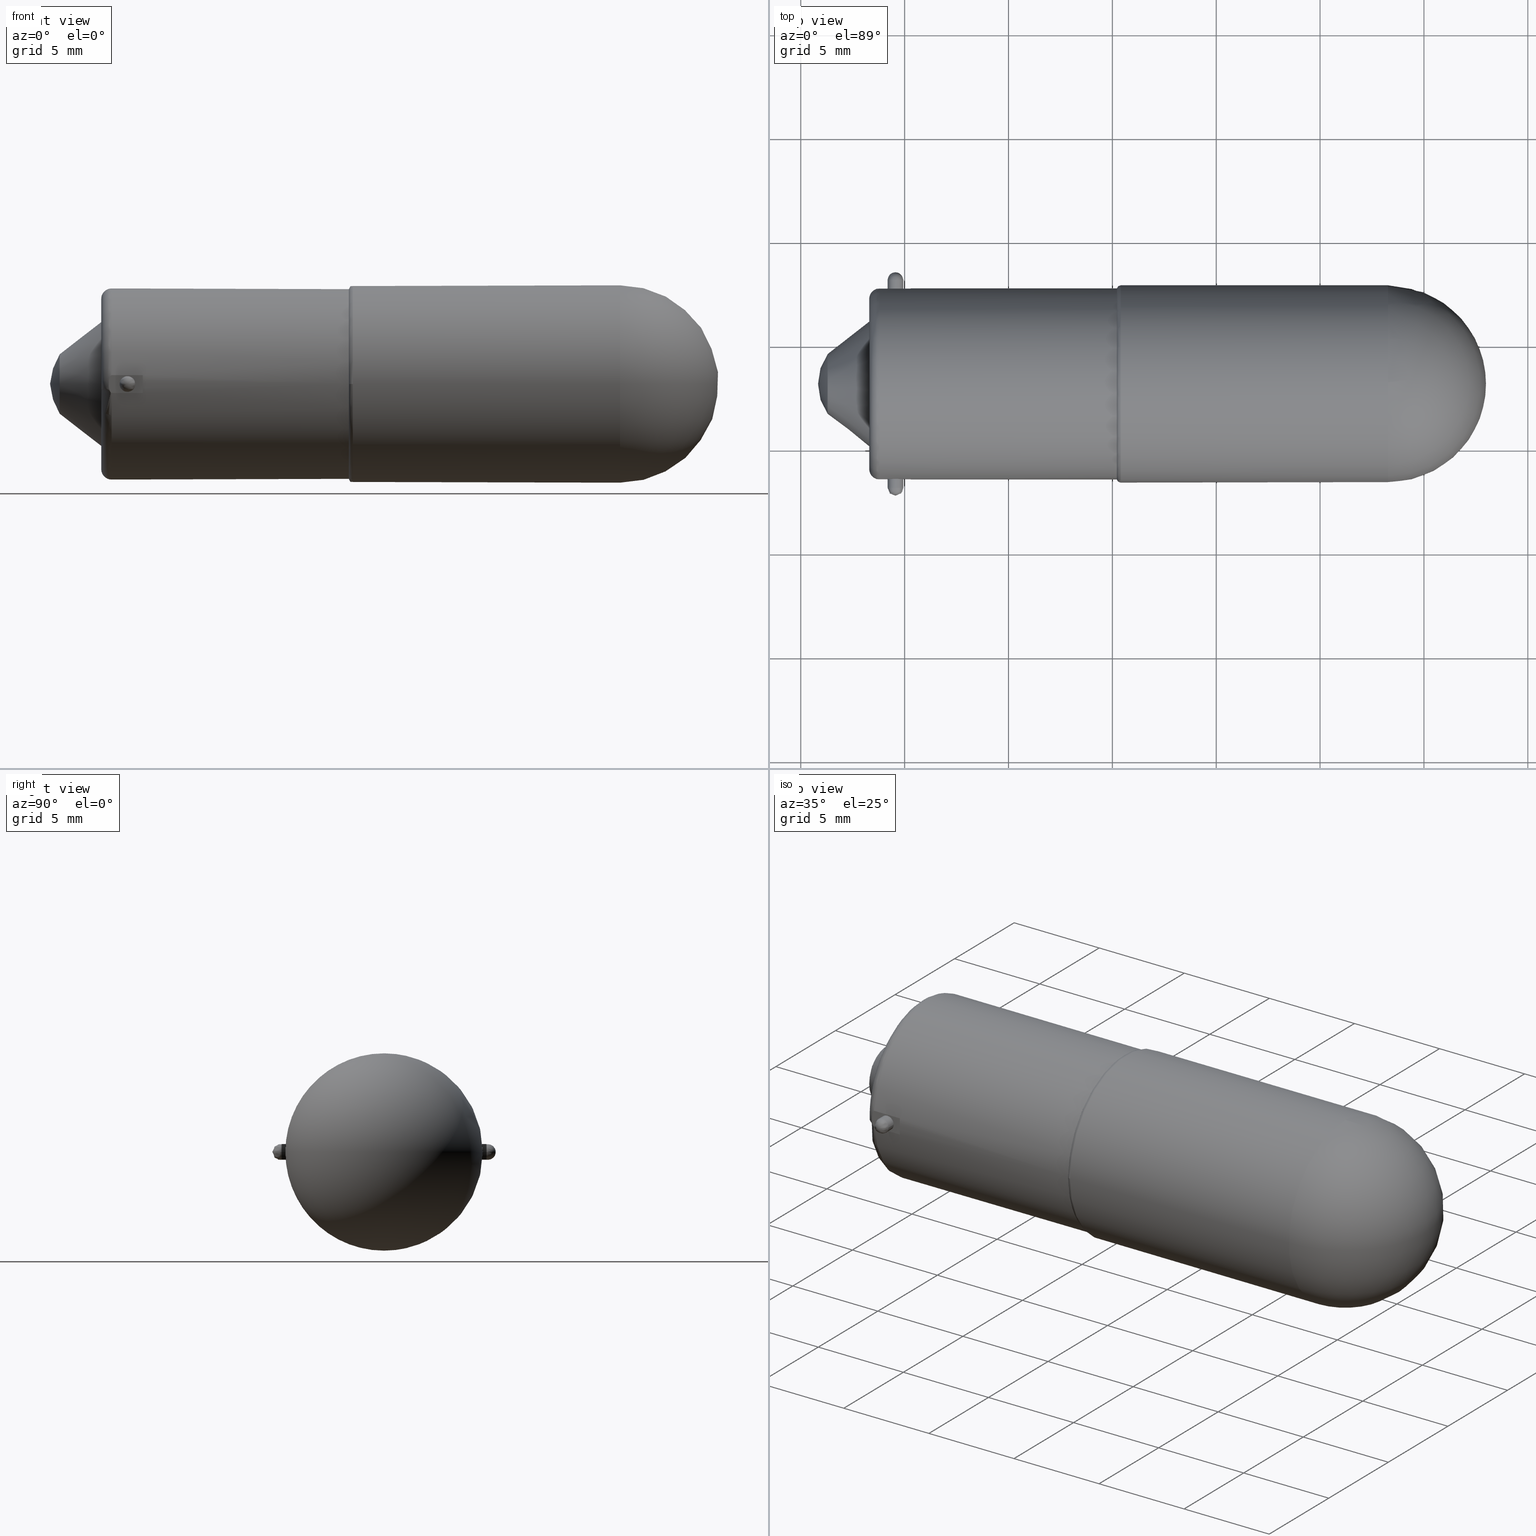
[diagram: canonical four-view strip — front | top / right | iso, engineering-drawing reading convention]
A machine part, canonical four-view strip (front | top / right | iso — engineering-drawing reading convention). The complete STEP part file that produces these views, byte-faithful:
ISO-10303-21;
HEADER;
/****************************************************************
 * Generated by software with PDE/Lib inside                    *
 * PDElib Version v51a, created Thu 12/14/2006                  *
 * International Technegroup Inc. (www.iti-oh.com)              *
 ****************************************************************/
FILE_DESCRIPTION((''),'2;1');
FILE_NAME('M:\\cad\\1PB\\BA9Syyy\\BA9Sxxx.stp','2007-11-15T14:35:29',('Philipp'),(''),'Autodesk Inventor 2008','Autodesk Inventor 2008','');
FILE_SCHEMA(('AUTOMOTIVE_DESIGN { 1 0 10303 214 1 1 1 1 }'));
ENDSEC;
DATA;
#5=APPLICATION_CONTEXT('automotive design');
#6=APPLICATION_PROTOCOL_DEFINITION('International Standard','automotive_design',2001,#5);
#7=PRODUCT_CONTEXT('',#5,'mechanical');
#8=PRODUCT('BA9Sxxx','BA9Sxxx',$,(#7));
#9=PRODUCT_RELATED_PRODUCT_CATEGORY('part',$,(#8));
#10=PRODUCT_DEFINITION_FORMATION('',$,#8);
#11=PRODUCT_DEFINITION_CONTEXT('part definition',#5,'design');
#12=PRODUCT_DEFINITION('',$,#10,#11);
#18=(NAMED_UNIT(*)PLANE_ANGLE_UNIT()SI_UNIT($,.RADIAN.));
#19=DIMENSIONAL_EXPONENTS(0.0,0.0,0.0,0.0,0.0,0.0,0.0);
#20=PLANE_ANGLE_MEASURE_WITH_UNIT(PLANE_ANGLE_MEASURE(0.017453292500000),#18);
#24=(CONVERSION_BASED_UNIT('DEGREE',#20)NAMED_UNIT(#19)PLANE_ANGLE_UNIT());
#28=(NAMED_UNIT(*)SI_UNIT($,.STERADIAN.)SOLID_ANGLE_UNIT());
#32=(LENGTH_UNIT()NAMED_UNIT(*)SI_UNIT(.MILLI.,.METRE.));
#34=UNCERTAINTY_MEASURE_WITH_UNIT(LENGTH_MEASURE(0.010000000000000),#32,'DISTANCE_ACCURACY_VALUE','');
#36=(GEOMETRIC_REPRESENTATION_CONTEXT(3)GLOBAL_UNCERTAINTY_ASSIGNED_CONTEXT((#34))GLOBAL_UNIT_ASSIGNED_CONTEXT((#24,#28,#32))REPRESENTATION_CONTEXT('None','None'));
#37=AXIS2_PLACEMENT_3D('',#38,#39,#40);
#38=CARTESIAN_POINT('',(0.0,0.0,0.0));
#39=DIRECTION('',(0.0,0.0,1.0));
#40=DIRECTION('',(1.0,0.0,0.0));
#41=SHAPE_REPRESENTATION('',(#37),#36);
#42=PRODUCT_DEFINITION_SHAPE('','',#12);
#43=SHAPE_DEFINITION_REPRESENTATION(#42,#41);
#49=(NAMED_UNIT(*)PLANE_ANGLE_UNIT()SI_UNIT($,.RADIAN.));
#50=DIMENSIONAL_EXPONENTS(0.0,0.0,0.0,0.0,0.0,0.0,0.0);
#51=PLANE_ANGLE_MEASURE_WITH_UNIT(PLANE_ANGLE_MEASURE(0.017453292500000),#49);
#55=(CONVERSION_BASED_UNIT('DEGREE',#51)NAMED_UNIT(#50)PLANE_ANGLE_UNIT());
#59=(NAMED_UNIT(*)SI_UNIT($,.STERADIAN.)SOLID_ANGLE_UNIT());
#63=(LENGTH_UNIT()NAMED_UNIT(*)SI_UNIT(.MILLI.,.METRE.));
#65=UNCERTAINTY_MEASURE_WITH_UNIT(LENGTH_MEASURE(0.000001000000000),#63,'DISTANCE_ACCURACY_VALUE','');
#67=(GEOMETRIC_REPRESENTATION_CONTEXT(3)GLOBAL_UNCERTAINTY_ASSIGNED_CONTEXT((#65))GLOBAL_UNIT_ASSIGNED_CONTEXT((#55,#59,#63))REPRESENTATION_CONTEXT('','3D'));
#68=CARTESIAN_POINT('',(-10.444225852481848,-1.858710488941706,-0.375014294287416));
#69=CARTESIAN_POINT('',(-10.819225852481848,-1.858710488941706,-0.375014294287416));
#70=CARTESIAN_POINT('',(-10.819225852481848,-1.858710488941706,-0.000014294287416));
#71=CARTESIAN_POINT('',(-10.819225852481848,-1.858710488941706,0.374985705712584));
#72=CARTESIAN_POINT('',(-10.444225852481848,-1.858710488941706,0.374985705712584));
#73=CARTESIAN_POINT('',(-10.444225852481848,-1.858710488941706,-0.375014294287416));
#74=CARTESIAN_POINT('',(-10.819225852481848,-1.483710488941706,-0.375014294287416));
#75=CARTESIAN_POINT('',(-10.819225852481848,-1.483710488941706,-0.000014294287416));
#76=CARTESIAN_POINT('',(-10.819225852481848,-1.483710488941706,0.374985705712584));
#77=CARTESIAN_POINT('',(-10.444225852481848,-1.858710488941706,0.374985705712584));
#78=CARTESIAN_POINT('',(-10.444225852481848,-1.858710488941706,-0.375014294287416));
#79=CARTESIAN_POINT('',(-10.444225852481848,-1.483710488941706,-0.375014294287416));
#80=CARTESIAN_POINT('',(-10.444225852481848,-1.483710488941706,-0.000014294287416));
#81=CARTESIAN_POINT('',(-10.444225852481848,-1.483710488941706,0.374985705712584));
#82=CARTESIAN_POINT('',(-10.444225852481848,-1.858710488941706,0.374985705712584));
#83=CARTESIAN_POINT('',(-10.444225852481848,-1.858710488941706,-0.375014294287416));
#84=CARTESIAN_POINT('',(-10.069225852481848,-1.483710488941706,-0.375014294287415));
#85=CARTESIAN_POINT('',(-10.069225852481848,-1.483710488941706,-0.000014294287416));
#86=CARTESIAN_POINT('',(-10.069225852481848,-1.483710488941706,0.374985705712585));
#87=CARTESIAN_POINT('',(-10.444225852481848,-1.858710488941706,0.374985705712584));
#88=CARTESIAN_POINT('',(-10.444225852481848,-1.858710488941706,-0.375014294287416));
#89=CARTESIAN_POINT('',(-10.069225852481848,-1.858710488941706,-0.375014294287415));
#90=CARTESIAN_POINT('',(-10.069225852481848,-1.858710488941706,-0.000014294287416));
#91=CARTESIAN_POINT('',(-10.069225852481848,-1.858710488941706,0.374985705712584));
#92=CARTESIAN_POINT('',(-10.444225852481848,-1.858710488941706,0.374985705712584));
#93=CARTESIAN_POINT('',(-10.444225852481848,-1.858710488941706,-0.375014294287416));
#94=CARTESIAN_POINT('',(-10.069225852481848,-2.233710488941706,-0.375014294287415));
#95=CARTESIAN_POINT('',(-10.069225852481848,-2.233710488941706,-0.000014294287416));
#96=CARTESIAN_POINT('',(-10.069225852481848,-2.233710488941706,0.374985705712585));
#97=CARTESIAN_POINT('',(-10.444225852481848,-1.858710488941706,0.374985705712584));
#98=CARTESIAN_POINT('',(-10.444225852481848,-1.858710488941706,-0.375014294287416));
#99=CARTESIAN_POINT('',(-10.444225852481848,-2.233710488941706,-0.375014294287416));
#100=CARTESIAN_POINT('',(-10.444225852481848,-2.233710488941706,-0.000014294287416));
#101=CARTESIAN_POINT('',(-10.444225852481848,-2.233710488941706,0.374985705712584));
#102=CARTESIAN_POINT('',(-10.444225852481848,-1.858710488941706,0.374985705712584));
#103=CARTESIAN_POINT('',(-10.444225852481848,-1.858710488941706,-0.375014294287416));
#104=CARTESIAN_POINT('',(-10.819225852481848,-2.233710488941706,-0.375014294287416));
#105=CARTESIAN_POINT('',(-10.819225852481848,-2.233710488941706,-0.000014294287416));
#106=CARTESIAN_POINT('',(-10.819225852481848,-2.233710488941706,0.374985705712584));
#107=CARTESIAN_POINT('',(-10.444225852481848,-1.858710488941706,0.374985705712584));
#108=CARTESIAN_POINT('',(-10.444225852481848,-1.858710488941706,-0.375014294287416));
#109=CARTESIAN_POINT('',(-10.819225852481848,-1.858710488941706,-0.375014294287416));
#110=CARTESIAN_POINT('',(-10.819225852481848,-1.858710488941706,-0.000014294287416));
#111=CARTESIAN_POINT('',(-10.819225852481848,-1.858710488941706,0.374985705712584));
#112=CARTESIAN_POINT('',(-10.444225852481848,-1.858710488941706,0.374985705712584));
#120=(BOUNDED_SURFACE()B_SPLINE_SURFACE(2,2,((#68,#73,#78,#83,#88,#93,#98,#103,#108),(#69,#74,#79,#84,#89,#94,#99,#104,#109),(#70,#75,#80,#85,#90,#95,#100,#105,#110),(#71,#76,#81,#86,#91,#96,#101,#106,#111),(#72,#77,#82,#87,#92,#97,#102,#107,#112)),.UNSPECIFIED.,.F.,.T.,.U.)B_SPLINE_SURFACE_WITH_KNOTS((3,2,3),(3,2,2,2,3),(-1.570796326794897,0.0,1.570796326794897),(0.0,1.570796326794897,3.141592653589793,4.712388980384690,6.283185307179586),.UNSPECIFIED.)GEOMETRIC_REPRESENTATION_ITEM()RATIONAL_B_SPLINE_SURFACE(((1.0,0.707106781186548,1.0,0.707106781186548,1.0,0.707106781186548,1.0,0.707106781186548,1.0),(0.707106781186550,0.500000000000002,0.707106781186550,0.500000000000002,0.707106781186550,0.500000000000002,0.707106781186550,0.500000000000002,0.707106781186550),(1.0,0.707106781186548,1.0,0.707106781186548,1.0,0.707106781186548,1.0,0.707106781186548,1.0),(0.707106781186551,0.500000000000002,0.707106781186551,0.500000000000002,0.707106781186551,0.500000000000002,0.707106781186551,0.500000000000002,0.707106781186551),(1.0,0.707106781186548,1.0,0.707106781186548,1.0,0.707106781186548,1.0,0.707106781186548,1.0)))REPRESENTATION_ITEM('')SURFACE());
#121=CARTESIAN_POINT('',(-10.069225852481846,-1.858710488941706,-0.000014294287416));
#122=VERTEX_POINT('',#121);
#123=CARTESIAN_POINT('',(-10.444225852481848,-1.858710488941706,-0.375014294287416));
#124=VERTEX_POINT('',#123);
#125=CARTESIAN_POINT('',(-10.444225852481848,-1.858710488941706,-0.000014294287416));
#126=DIRECTION('',(0.0,1.0,0.0));
#127=DIRECTION('',(-1.0,0.0,0.0));
#128=AXIS2_PLACEMENT_3D('',#125,#126,#127);
#129=CIRCLE('',#128,0.375000000000001);
#130=EDGE_CURVE('',#122,#124,#129,.T.);
#131=ORIENTED_EDGE('',*,*,#130,.F.);
#132=CARTESIAN_POINT('',(-10.444225852481848,-1.858710488941706,0.374985705712585));
#133=VERTEX_POINT('',#132);
#134=CARTESIAN_POINT('',(-10.444225852481848,-1.858710488941706,-0.000014294287416));
#135=DIRECTION('',(0.0,1.0,0.0));
#136=DIRECTION('',(-1.0,0.0,0.0));
#137=AXIS2_PLACEMENT_3D('',#134,#135,#136);
#138=CIRCLE('',#137,0.375000000000001);
#139=EDGE_CURVE('',#133,#122,#138,.T.);
#140=ORIENTED_EDGE('',*,*,#139,.F.);
#141=CARTESIAN_POINT('',(-10.444225852481848,-1.858710488941706,-0.000014294287416));
#142=DIRECTION('',(0.0,1.0,0.0));
#143=DIRECTION('',(-1.0,0.0,0.0));
#144=AXIS2_PLACEMENT_3D('',#141,#142,#143);
#145=CIRCLE('',#144,0.375000000000001);
#146=EDGE_CURVE('',#124,#133,#145,.T.);
#147=ORIENTED_EDGE('',*,*,#146,.F.);
#148=EDGE_LOOP('',(#131,#140,#147));
#149=FACE_OUTER_BOUND('',#148,.T.);
#150=ADVANCED_FACE('',(#149),#120,.T.);
#151=CARTESIAN_POINT('',(-10.069225852481848,-1.433710488941706,-0.000014294287416));
#152=CARTESIAN_POINT('',(-10.069225852481848,-1.858710488941706,-0.000014294287416));
#153=CARTESIAN_POINT('',(-10.069225852481848,-1.433710488941706,-0.375014294287416));
#154=CARTESIAN_POINT('',(-10.069225852481848,-1.858710488941706,-0.375014294287416));
#155=CARTESIAN_POINT('',(-10.444225852481848,-1.433710488941706,-0.375014294287416));
#156=CARTESIAN_POINT('',(-10.444225852481848,-1.858710488941706,-0.375014294287416));
#157=CARTESIAN_POINT('',(-10.819225852481848,-1.433710488941706,-0.375014294287415));
#158=CARTESIAN_POINT('',(-10.819225852481848,-1.858710488941706,-0.375014294287415));
#159=CARTESIAN_POINT('',(-10.819225852481848,-1.433710488941706,-0.000014294287415));
#160=CARTESIAN_POINT('',(-10.819225852481848,-1.858710488941706,-0.000014294287415));
#161=CARTESIAN_POINT('',(-10.819225852481848,-1.433710488941706,0.374985705712584));
#162=CARTESIAN_POINT('',(-10.819225852481848,-1.858710488941706,0.374985705712584));
#163=CARTESIAN_POINT('',(-10.444225852481848,-1.433710488941706,0.374985705712584));
#164=CARTESIAN_POINT('',(-10.444225852481848,-1.858710488941706,0.374985705712584));
#165=CARTESIAN_POINT('',(-10.069225852481848,-1.433710488941706,0.374985705712584));
#166=CARTESIAN_POINT('',(-10.069225852481848,-1.858710488941706,0.374985705712584));
#167=CARTESIAN_POINT('',(-10.069225852481848,-1.433710488941706,-0.000014294287416));
#168=CARTESIAN_POINT('',(-10.069225852481848,-1.858710488941706,-0.000014294287416));
#176=(BOUNDED_SURFACE()B_SPLINE_SURFACE(1,2,((#151,#153,#155,#157,#159,#161,#163,#165,#167),(#152,#154,#156,#158,#160,#162,#164,#166,#168)),.UNSPECIFIED.,.F.,.T.,.U.)B_SPLINE_SURFACE_WITH_KNOTS((2,2),(3,2,2,2,3),(1.776357E-015,1.133333333333336),(0.0,0.589048622548086,1.178097245096173,1.767145867644259,2.356194490192345),.UNSPECIFIED.)GEOMETRIC_REPRESENTATION_ITEM()RATIONAL_B_SPLINE_SURFACE(((1.0,0.707106781186548,1.0,0.707106781186548,1.0,0.707106781186548,1.0,0.707106781186548,1.0),(1.0,0.707106781186548,1.0,0.707106781186548,1.0,0.707106781186548,1.0,0.707106781186548,1.0)))REPRESENTATION_ITEM('')SURFACE());
#177=CARTESIAN_POINT('',(-10.069225852481846,-1.433710488941705,-0.000014294287416));
#178=VERTEX_POINT('',#177);
#179=CARTESIAN_POINT('',(-10.444225852481848,-1.433710488941706,-0.000014294287416));
#180=DIRECTION('',(0.0,1.0,0.0));
#181=DIRECTION('',(-1.0,0.0,0.0));
#182=AXIS2_PLACEMENT_3D('',#179,#180,#181);
#183=CIRCLE('',#182,0.375000000000000);
#184=EDGE_CURVE('',#178,#178,#183,.T.);
#185=ORIENTED_EDGE('',*,*,#184,.F.);
#186=EDGE_LOOP('',(#185));
#187=FACE_OUTER_BOUND('',#186,.T.);
#188=ORIENTED_EDGE('',*,*,#130,.T.);
#189=ORIENTED_EDGE('',*,*,#146,.T.);
#190=ORIENTED_EDGE('',*,*,#139,.T.);
#191=EDGE_LOOP('',(#188,#189,#190));
#192=FACE_BOUND('',#191,.T.);
#193=ADVANCED_FACE('',(#187,#192),#176,.T.);
#194=CARTESIAN_POINT('',(-10.444225852481848,8.151289511058291,-0.000014294287416));
#195=DIRECTION('',(0.0,0.0,1.0));
#196=DIRECTION('',(1.0,0.0,0.0));
#197=AXIS2_PLACEMENT_3D('',#194,#195,#196);
#198=SPHERICAL_SURFACE('',#197,0.375000000000000);
#199=CARTESIAN_POINT('',(-10.069225852481846,8.151289511058291,-0.000014294287416));
#200=VERTEX_POINT('',#199);
#201=CARTESIAN_POINT('',(-10.444225852481848,8.151289511058291,-0.375014294287416));
#202=VERTEX_POINT('',#201);
#203=CARTESIAN_POINT('',(-10.444225852481848,8.151289511058291,-0.000014294287416));
#204=DIRECTION('',(0.0,1.0,0.0));
#205=DIRECTION('',(-1.0,0.0,0.0));
#206=AXIS2_PLACEMENT_3D('',#203,#204,#205);
#207=CIRCLE('',#206,0.375000000000001);
#208=EDGE_CURVE('',#200,#202,#207,.T.);
#209=ORIENTED_EDGE('',*,*,#208,.T.);
#210=CARTESIAN_POINT('',(-10.444225852481848,8.151289511058291,0.374985705712585));
#211=VERTEX_POINT('',#210);
#212=CARTESIAN_POINT('',(-10.444225852481848,8.151289511058291,-0.000014294287416));
#213=DIRECTION('',(0.0,1.0,0.0));
#214=DIRECTION('',(-1.0,0.0,0.0));
#215=AXIS2_PLACEMENT_3D('',#212,#213,#214);
#216=CIRCLE('',#215,0.375000000000001);
#217=EDGE_CURVE('',#202,#211,#216,.T.);
#218=ORIENTED_EDGE('',*,*,#217,.T.);
#219=CARTESIAN_POINT('',(-10.444225852481848,8.151289511058291,-0.000014294287416));
#220=DIRECTION('',(0.0,1.0,0.0));
#221=DIRECTION('',(-1.0,0.0,0.0));
#222=AXIS2_PLACEMENT_3D('',#219,#220,#221);
#223=CIRCLE('',#222,0.375000000000001);
#224=EDGE_CURVE('',#211,#200,#223,.T.);
#225=ORIENTED_EDGE('',*,*,#224,.T.);
#226=EDGE_LOOP('',(#209,#218,#225));
#227=FACE_OUTER_BOUND('',#226,.T.);
#228=ADVANCED_FACE('',(#227),#198,.T.);
#229=CARTESIAN_POINT('',(-10.444225852481848,7.726289511058290,-0.000014294287416));
#230=DIRECTION('',(0.0,1.0,0.0));
#231=DIRECTION('',(-1.0,0.0,0.0));
#232=AXIS2_PLACEMENT_3D('',#229,#230,#231);
#233=CYLINDRICAL_SURFACE('',#232,0.375000000000000);
#234=CARTESIAN_POINT('',(-10.069225852481846,7.726289511058290,-0.000014294287416));
#235=VERTEX_POINT('',#234);
#236=CARTESIAN_POINT('',(-10.444225852481848,7.726289511058290,-0.000014294287416));
#237=DIRECTION('',(0.0,-1.0,0.0));
#238=DIRECTION('',(-1.0,0.0,0.0));
#239=AXIS2_PLACEMENT_3D('',#236,#237,#238);
#240=CIRCLE('',#239,0.375000000000000);
#241=EDGE_CURVE('',#235,#235,#240,.T.);
#242=ORIENTED_EDGE('',*,*,#241,.F.);
#243=EDGE_LOOP('',(#242));
#244=FACE_OUTER_BOUND('',#243,.T.);
#245=ORIENTED_EDGE('',*,*,#208,.F.);
#246=ORIENTED_EDGE('',*,*,#224,.F.);
#247=ORIENTED_EDGE('',*,*,#217,.F.);
#248=EDGE_LOOP('',(#245,#246,#247));
#249=FACE_BOUND('',#248,.T.);
#250=ADVANCED_FACE('',(#244,#249),#233,.T.);
#251=CARTESIAN_POINT('',(-9.705609115138564,8.509589465154260,0.123121417769885));
#252=DIRECTION('',(1.0,0.0,0.0));
#253=DIRECTION('',(0.0,0.0,-1.0));
#254=AXIS2_PLACEMENT_3D('',#251,#252,#253);
#255=PLANE('',#254);
#256=CARTESIAN_POINT('',(-9.705609115138564,7.726289511058290,-0.428485705712584));
#257=VERTEX_POINT('',#256);
#258=CARTESIAN_POINT('',(-9.705609115138564,7.726289511058290,0.428485705712584));
#259=VERTEX_POINT('',#258);
#260=CARTESIAN_POINT('',(-9.705609115138564,3.146289511058293,0.0));
#261=DIRECTION('',(1.0,0.0,0.0));
#262=DIRECTION('',(0.0,1.0,0.0));
#263=AXIS2_PLACEMENT_3D('',#260,#261,#262);
#264=CIRCLE('',#263,4.599999999999999);
#265=EDGE_CURVE('',#257,#259,#264,.T.);
#266=ORIENTED_EDGE('',*,*,#265,.F.);
#267=CARTESIAN_POINT('',(-9.705609115138564,7.726289511058290,-0.428485705712584));
#268=DIRECTION('',(0.0,0.0,1.0));
#269=VECTOR('',#268,0.856971411425169);
#270=LINE('',#267,#269);
#271=EDGE_CURVE('',#257,#259,#270,.T.);
#272=ORIENTED_EDGE('',*,*,#271,.T.);
#273=EDGE_LOOP('',(#266,#272));
#274=FACE_OUTER_BOUND('',#273,.T.);
#275=ADVANCED_FACE('',(#274),#255,.F.);
#276=CARTESIAN_POINT('',(-11.705609115138564,7.726289511058290,-1.685816335618424));
#277=DIRECTION('',(0.0,-1.0,0.0));
#278=DIRECTION('',(0.0,0.0,-1.0));
#279=AXIS2_PLACEMENT_3D('',#276,#277,#278);
#280=PLANE('',#279);
#281=CARTESIAN_POINT('',(-11.205609115138566,7.726289511058290,-0.428485705712584));
#282=VERTEX_POINT('',#281);
#283=CARTESIAN_POINT('',(-11.205609115138566,7.726289511058290,-0.428485705712584));
#284=DIRECTION('',(1.0,0.0,0.0));
#285=VECTOR('',#284,1.500000000000002);
#286=LINE('',#283,#285);
#287=EDGE_CURVE('',#282,#257,#286,.T.);
#288=ORIENTED_EDGE('',*,*,#287,.F.);
#289=CARTESIAN_POINT('',(-11.205609115138566,7.726289511058290,0.428485705712584));
#290=VERTEX_POINT('',#289);
#291=CARTESIAN_POINT('',(-11.205609115138566,7.726289511058290,0.428485705712594));
#292=CARTESIAN_POINT('',(-11.213493394584956,7.726289511058290,0.428485705712594));
#293=CARTESIAN_POINT('',(-11.222599724750937,7.726289511058290,0.425919028337451));
#294=CARTESIAN_POINT('',(-11.240301847795918,7.726289511058290,0.416661973075307));
#295=CARTESIAN_POINT('',(-11.250828480085829,7.726289511058290,0.406674612086121));
#296=CARTESIAN_POINT('',(-11.273318155992227,7.726289511058290,0.379013964780377));
#297=CARTESIAN_POINT('',(-11.285928217333375,7.726289511058290,0.353713346548038));
#298=CARTESIAN_POINT('',(-11.334050955553060,7.726289511058290,0.233178343825166));
#299=CARTESIAN_POINT('',(-11.345609115138569,7.726289511058290,0.106228825513143));
#300=CARTESIAN_POINT('',(-11.345609115138569,7.726289511058290,0.0));
#301=CARTESIAN_POINT('',(-11.345609115138569,7.726289511058290,-0.106228825513143));
#302=CARTESIAN_POINT('',(-11.334050955553060,7.726289511058290,-0.233178343825166));
#303=CARTESIAN_POINT('',(-11.285928217333375,7.726289511058290,-0.353713346548038));
#304=CARTESIAN_POINT('',(-11.273318155992227,7.726289511058290,-0.379013964780377));
#305=CARTESIAN_POINT('',(-11.250828480085829,7.726289511058290,-0.406674612086121));
#306=CARTESIAN_POINT('',(-11.240301847795918,7.726289511058290,-0.416661973075307));
#307=CARTESIAN_POINT('',(-11.222599724750937,7.726289511058290,-0.425919028337451));
#308=CARTESIAN_POINT('',(-11.213493394584956,7.726289511058290,-0.428485705712594));
#309=CARTESIAN_POINT('',(-11.205609115138566,7.726289511058290,-0.428485705712594));
#310=B_SPLINE_CURVE_WITH_KNOTS('',3,(#291,#292,#293,#294,#295,#296,#297,#298,#299,#300,#301,#302,#303,#304,#305,#306,#307,#308,#309),.UNSPECIFIED.,.F.,.U.,(4,2,2,2,3,2,2,2,4),(-0.044928823907015,-0.042563540073097,-0.038935891326188,-0.031868647653943,0.0,0.031868647653943,0.038935891326188,0.042563540073097,0.044928823907015),.UNSPECIFIED.);
#311=EDGE_CURVE('',#290,#282,#310,.T.);
#312=ORIENTED_EDGE('',*,*,#311,.F.);
#313=CARTESIAN_POINT('',(-9.705609115138564,7.726289511058290,0.428485705712584));
#314=DIRECTION('',(-1.0,0.0,0.0));
#315=VECTOR('',#314,1.500000000000002);
#316=LINE('',#313,#315);
#317=EDGE_CURVE('',#259,#290,#316,.T.);
#318=ORIENTED_EDGE('',*,*,#317,.F.);
#319=ORIENTED_EDGE('',*,*,#271,.F.);
#320=EDGE_LOOP('',(#288,#312,#318,#319));
#321=FACE_OUTER_BOUND('',#320,.T.);
#322=ORIENTED_EDGE('',*,*,#241,.T.);
#323=EDGE_LOOP('',(#322));
#324=FACE_BOUND('',#323,.T.);
#325=ADVANCED_FACE('',(#321,#324),#280,.F.);
#326=CARTESIAN_POINT('',(-9.705609115138564,-2.555126799026086,0.258788378605951));
#327=DIRECTION('',(1.0,0.0,0.0));
#328=DIRECTION('',(0.0,0.0,-1.0));
#329=AXIS2_PLACEMENT_3D('',#326,#327,#328);
#330=PLANE('',#329);
#331=CARTESIAN_POINT('',(-9.705609115138564,-1.433710488941706,0.428485705712578));
#332=VERTEX_POINT('',#331);
#333=CARTESIAN_POINT('',(-9.705609115138564,-1.433710488941706,-0.428485705712578));
#334=VERTEX_POINT('',#333);
#335=CARTESIAN_POINT('',(-9.705609115138564,3.146289511058293,0.0));
#336=DIRECTION('',(1.0,0.0,0.0));
#337=DIRECTION('',(0.0,1.0,0.0));
#338=AXIS2_PLACEMENT_3D('',#335,#336,#337);
#339=CIRCLE('',#338,4.599999999999999);
#340=EDGE_CURVE('',#332,#334,#339,.T.);
#341=ORIENTED_EDGE('',*,*,#340,.F.);
#342=CARTESIAN_POINT('',(-9.705609115138564,-1.433710488941706,0.428485705712578));
#343=DIRECTION('',(0.0,0.0,-1.0));
#344=VECTOR('',#343,0.856971411425156);
#345=LINE('',#342,#344);
#346=EDGE_CURVE('',#332,#334,#345,.T.);
#347=ORIENTED_EDGE('',*,*,#346,.T.);
#348=EDGE_LOOP('',(#341,#347));
#349=FACE_OUTER_BOUND('',#348,.T.);
#350=ADVANCED_FACE('',(#349),#330,.F.);
#351=CARTESIAN_POINT('',(-11.705609115138564,-1.433710488941706,2.960175839492622));
#352=DIRECTION('',(0.0,1.0,0.0));
#353=DIRECTION('',(0.0,0.0,1.0));
#354=AXIS2_PLACEMENT_3D('',#351,#352,#353);
#355=PLANE('',#354);
#356=CARTESIAN_POINT('',(-11.205609115138566,-1.433710488941706,0.428485705712578));
#357=VERTEX_POINT('',#356);
#358=CARTESIAN_POINT('',(-11.205609115138566,-1.433710488941706,0.428485705712578));
#359=DIRECTION('',(1.0,0.0,0.0));
#360=VECTOR('',#359,1.500000000000002);
#361=LINE('',#358,#360);
#362=EDGE_CURVE('',#357,#332,#361,.T.);
#363=ORIENTED_EDGE('',*,*,#362,.F.);
#364=CARTESIAN_POINT('',(-11.205609115138566,-1.433710488941706,-0.428485705712578));
#365=VERTEX_POINT('',#364);
#366=CARTESIAN_POINT('',(-11.205609115138566,-1.433710488941706,-0.428485705712578));
#367=CARTESIAN_POINT('',(-11.213493394584956,-1.433710488941706,-0.428485705712578));
#368=CARTESIAN_POINT('',(-11.222599724750937,-1.433710488941706,-0.425919028337445));
#369=CARTESIAN_POINT('',(-11.240301847795918,-1.433710488941706,-0.416661973075300));
#370=CARTESIAN_POINT('',(-11.250828480085829,-1.433710488941706,-0.406674612086114));
#371=CARTESIAN_POINT('',(-11.273318155992225,-1.433710488941706,-0.379013964780372));
#372=CARTESIAN_POINT('',(-11.285928217333369,-1.433710488941706,-0.353713346548035));
#373=CARTESIAN_POINT('',(-11.334050955553058,-1.433710488941706,-0.233178343825167));
#374=CARTESIAN_POINT('',(-11.345609115138567,-1.433710488941706,-0.106228825513144));
#375=CARTESIAN_POINT('',(-11.345609115138567,-1.433710488941706,0.0));
#376=CARTESIAN_POINT('',(-11.345609115138567,-1.433710488941706,0.106228825513144));
#377=CARTESIAN_POINT('',(-11.334050955553058,-1.433710488941706,0.233178343825167));
#378=CARTESIAN_POINT('',(-11.285928217333369,-1.433710488941706,0.353713346548035));
#379=CARTESIAN_POINT('',(-11.273318155992225,-1.433710488941706,0.379013964780372));
#380=CARTESIAN_POINT('',(-11.250828480085829,-1.433710488941706,0.406674612086114));
#381=CARTESIAN_POINT('',(-11.240301847795918,-1.433710488941706,0.416661973075300));
#382=CARTESIAN_POINT('',(-11.222599724750937,-1.433710488941706,0.425919028337445));
#383=CARTESIAN_POINT('',(-11.213493394584956,-1.433710488941706,0.428485705712578));
#384=CARTESIAN_POINT('',(-11.205609115138566,-1.433710488941706,0.428485705712578));
#385=B_SPLINE_CURVE_WITH_KNOTS('',3,(#366,#367,#368,#369,#370,#371,#372,#373,#374,#375,#376,#377,#378,#379,#380,#381,#382,#383,#384),.UNSPECIFIED.,.F.,.U.,(4,2,2,2,3,2,2,2,4),(-0.044928823907014,-0.042563540073097,-0.038935891326187,-0.031868647653943,0.0,0.031868647653943,0.038935891326187,0.042563540073097,0.044928823907014),.UNSPECIFIED.);
#386=EDGE_CURVE('',#365,#357,#385,.T.);
#387=ORIENTED_EDGE('',*,*,#386,.F.);
#388=CARTESIAN_POINT('',(-9.705609115138564,-1.433710488941706,-0.428485705712578));
#389=DIRECTION('',(-1.0,0.0,0.0));
#390=VECTOR('',#389,1.500000000000002);
#391=LINE('',#388,#390);
#392=EDGE_CURVE('',#334,#365,#391,.T.);
#393=ORIENTED_EDGE('',*,*,#392,.F.);
#394=ORIENTED_EDGE('',*,*,#346,.F.);
#395=EDGE_LOOP('',(#363,#387,#393,#394));
#396=FACE_OUTER_BOUND('',#395,.T.);
#397=ORIENTED_EDGE('',*,*,#184,.T.);
#398=EDGE_LOOP('',(#397));
#399=FACE_BOUND('',#398,.T.);
#400=ADVANCED_FACE('',(#396,#399),#355,.F.);
#401=CARTESIAN_POINT('',(-5.743960075101469,3.146289511058293,0.0));
#402=DIRECTION('',(1.0,0.0,0.0));
#403=DIRECTION('',(0.0,1.0,0.0));
#404=AXIS2_PLACEMENT_3D('',#401,#402,#403);
#405=CYLINDRICAL_SURFACE('',#404,4.599999999999999);
#406=ORIENTED_EDGE('',*,*,#287,.T.);
#407=ORIENTED_EDGE('',*,*,#265,.T.);
#408=ORIENTED_EDGE('',*,*,#317,.T.);
#409=CARTESIAN_POINT('',(-11.205609115138564,3.146289511058293,0.0));
#410=DIRECTION('',(-1.0,0.0,0.0));
#411=DIRECTION('',(0.0,-1.0,0.0));
#412=AXIS2_PLACEMENT_3D('',#409,#410,#411);
#413=CIRCLE('',#412,4.599999999999999);
#414=EDGE_CURVE('',#357,#290,#413,.T.);
#415=ORIENTED_EDGE('',*,*,#414,.F.);
#416=ORIENTED_EDGE('',*,*,#362,.T.);
#417=ORIENTED_EDGE('',*,*,#340,.T.);
#418=ORIENTED_EDGE('',*,*,#392,.T.);
#419=CARTESIAN_POINT('',(-11.205609115138564,3.146289511058293,0.0));
#420=DIRECTION('',(-1.0,0.0,0.0));
#421=DIRECTION('',(0.0,-1.0,0.0));
#422=AXIS2_PLACEMENT_3D('',#419,#420,#421);
#423=CIRCLE('',#422,4.599999999999999);
#424=EDGE_CURVE('',#282,#365,#423,.T.);
#425=ORIENTED_EDGE('',*,*,#424,.F.);
#426=EDGE_LOOP('',(#406,#407,#408,#415,#416,#417,#418,#425));
#427=FACE_OUTER_BOUND('',#426,.T.);
#428=CARTESIAN_POINT('',(0.217688964935625,7.746289511058293,0.0));
#429=VERTEX_POINT('',#428);
#430=CARTESIAN_POINT('',(0.217688964935625,3.146289511058293,0.0));
#431=DIRECTION('',(1.0,0.0,0.0));
#432=DIRECTION('',(0.0,1.0,0.0));
#433=AXIS2_PLACEMENT_3D('',#430,#431,#432);
#434=CIRCLE('',#433,4.600000000000001);
#435=EDGE_CURVE('',#429,#429,#434,.T.);
#436=ORIENTED_EDGE('',*,*,#435,.F.);
#437=EDGE_LOOP('',(#436));
#438=FACE_BOUND('',#437,.T.);
#439=ADVANCED_FACE('',(#427,#438),#405,.T.);
#440=CARTESIAN_POINT('',(-11.205609115138564,3.146289511058293,0.0));
#441=DIRECTION('',(1.0,0.0,0.0));
#442=DIRECTION('',(0.0,0.0,-1.0));
#443=AXIS2_PLACEMENT_3D('',#440,#441,#442);
#444=TOROIDAL_SURFACE('',#443,4.100000000000000,0.500000000000000);
#445=ORIENTED_EDGE('',*,*,#311,.T.);
#446=ORIENTED_EDGE('',*,*,#424,.T.);
#447=ORIENTED_EDGE('',*,*,#386,.T.);
#448=ORIENTED_EDGE('',*,*,#414,.T.);
#449=EDGE_LOOP('',(#445,#446,#447,#448));
#450=FACE_OUTER_BOUND('',#449,.T.);
#451=CARTESIAN_POINT('',(-11.705609115138564,7.246289511058293,0.0));
#452=VERTEX_POINT('',#451);
#453=CARTESIAN_POINT('',(-11.705609115138564,3.146289511058293,0.0));
#454=DIRECTION('',(1.0,0.0,0.0));
#455=DIRECTION('',(0.0,-1.0,0.0));
#456=AXIS2_PLACEMENT_3D('',#453,#454,#455);
#457=CIRCLE('',#456,4.100000000000000);
#458=EDGE_CURVE('',#452,#452,#457,.T.);
#459=ORIENTED_EDGE('',*,*,#458,.T.);
#460=EDGE_LOOP('',(#459));
#461=FACE_BOUND('',#460,.T.);
#462=ADVANCED_FACE('',(#450,#461),#444,.T.);
#463=CARTESIAN_POINT('',(-11.705609115138564,6.946289511058293,0.0));
#464=DIRECTION('',(-1.0,0.0,0.0));
#465=DIRECTION('',(0.0,0.0,1.0));
#466=AXIS2_PLACEMENT_3D('',#463,#464,#465);
#467=PLANE('',#466);
#468=ORIENTED_EDGE('',*,*,#458,.F.);
#469=EDGE_LOOP('',(#468));
#470=FACE_OUTER_BOUND('',#469,.T.);
#471=CARTESIAN_POINT('',(-11.705609115138564,6.146289511058294,0.0));
#472=VERTEX_POINT('',#471);
#473=CARTESIAN_POINT('',(-11.705609115138564,3.146289511058293,0.0));
#474=DIRECTION('',(1.0,0.0,0.0));
#475=DIRECTION('',(0.0,1.0,0.0));
#476=AXIS2_PLACEMENT_3D('',#473,#474,#475);
#477=CIRCLE('',#476,3.000000000000001);
#478=EDGE_CURVE('',#472,#472,#477,.T.);
#479=ORIENTED_EDGE('',*,*,#478,.T.);
#480=EDGE_LOOP('',(#479));
#481=FACE_BOUND('',#480,.T.);
#482=ADVANCED_FACE('',(#470,#481),#467,.T.);
#483=CARTESIAN_POINT('',(0.217688964935625,-1.453710488941707,1.139018E-015));
#484=CARTESIAN_POINT('',(0.256418798397698,-1.603710488941710,1.176160E-015));
#485=CARTESIAN_POINT('',(0.411338132245997,-1.603710488941710,1.176160E-015));
#486=CARTESIAN_POINT('',(0.217688964935625,-1.453710488941705,4.600000000000000));
#487=CARTESIAN_POINT('',(0.256418798397698,-1.603710488941708,4.750000000000003));
#488=CARTESIAN_POINT('',(0.411338132245997,-1.603710488941708,4.750000000000003));
#489=CARTESIAN_POINT('',(0.217688964935625,3.146289511058294,4.600000000000000));
#490=CARTESIAN_POINT('',(0.256418798397698,3.146289511058294,4.750000000000003));
#491=CARTESIAN_POINT('',(0.411338132245997,3.146289511058294,4.750000000000003));
#492=CARTESIAN_POINT('',(0.217688964935625,7.746289511058294,4.599999999999998));
#493=CARTESIAN_POINT('',(0.256418798397698,7.896289511058297,4.750000000000001));
#494=CARTESIAN_POINT('',(0.411338132245997,7.896289511058295,4.750000000000001));
#495=CARTESIAN_POINT('',(0.217688964935625,7.746289511058293,-1.139018E-015));
#496=CARTESIAN_POINT('',(0.256418798397698,7.896289511058296,-1.176160E-015));
#497=CARTESIAN_POINT('',(0.411338132245997,7.896289511058296,-1.176160E-015));
#498=CARTESIAN_POINT('',(0.217688964935625,7.746289511058290,-4.600000000000000));
#499=CARTESIAN_POINT('',(0.256418798397698,7.896289511058293,-4.750000000000003));
#500=CARTESIAN_POINT('',(0.411338132245997,7.896289511058294,-4.750000000000003));
#501=CARTESIAN_POINT('',(0.217688964935625,3.146289511058292,-4.600000000000000));
#502=CARTESIAN_POINT('',(0.256418798397698,3.146289511058292,-4.750000000000003));
#503=CARTESIAN_POINT('',(0.411338132245997,3.146289511058292,-4.750000000000003));
#504=CARTESIAN_POINT('',(0.217688964935625,-1.453710488941707,-4.599999999999998));
#505=CARTESIAN_POINT('',(0.256418798397698,-1.603710488941710,-4.750000000000001));
#506=CARTESIAN_POINT('',(0.411338132245997,-1.603710488941710,-4.750000000000001));
#507=CARTESIAN_POINT('',(0.217688964935625,-1.453710488941707,1.139018E-015));
#508=CARTESIAN_POINT('',(0.256418798397698,-1.603710488941710,1.176160E-015));
#509=CARTESIAN_POINT('',(0.411338132245997,-1.603710488941710,1.176160E-015));
#517=(BOUNDED_SURFACE()B_SPLINE_SURFACE(2,2,((#483,#486,#489,#492,#495,#498,#501,#504,#507),(#484,#487,#490,#493,#496,#499,#502,#505,#508),(#485,#488,#491,#494,#497,#500,#503,#506,#509)),.UNSPECIFIED.,.F.,.T.,.U.)B_SPLINE_SURFACE_WITH_KNOTS((3,3),(3,2,2,2,3),(-1.318116071652832,0.0),(0.0,1.570796326794897,3.141592653589793,4.712388980384690,6.283185307179586),.UNSPECIFIED.)GEOMETRIC_REPRESENTATION_ITEM()RATIONAL_B_SPLINE_SURFACE(((1.0,0.707106781186548,1.0,0.707106781186548,1.0,0.707106781186548,1.0,0.707106781186548,1.0),(0.790569415042086,0.559016994374941,0.790569415042086,0.559016994374941,0.790569415042086,0.559016994374941,0.790569415042086,0.559016994374941,0.790569415042086),(1.0,0.707106781186548,1.0,0.707106781186548,1.0,0.707106781186548,1.0,0.707106781186548,1.0)))REPRESENTATION_ITEM('')SURFACE());
#518=ORIENTED_EDGE('',*,*,#435,.T.);
#519=EDGE_LOOP('',(#518));
#520=FACE_OUTER_BOUND('',#519,.T.);
#521=CARTESIAN_POINT('',(0.411338132245997,-1.603710488941711,1.176160E-015));
#522=VERTEX_POINT('',#521);
#523=CARTESIAN_POINT('',(0.411338132245997,3.146289511058293,0.0));
#524=DIRECTION('',(-1.0,0.0,0.0));
#525=DIRECTION('',(0.0,1.0,0.0));
#526=AXIS2_PLACEMENT_3D('',#523,#524,#525);
#527=CIRCLE('',#526,4.750000000000004);
#528=EDGE_CURVE('',#522,#522,#527,.T.);
#529=ORIENTED_EDGE('',*,*,#528,.T.);
#530=EDGE_LOOP('',(#529));
#531=FACE_BOUND('',#530,.T.);
#532=ADVANCED_FACE('',(#520,#531),#517,.T.);
#533=CARTESIAN_POINT('',(6.744115670753672,3.146289511058293,0.0));
#534=DIRECTION('',(1.0,0.0,0.0));
#535=DIRECTION('',(0.0,1.0,0.0));
#536=AXIS2_PLACEMENT_3D('',#533,#534,#535);
#537=CYLINDRICAL_SURFACE('',#536,4.750000000000003);
#538=CARTESIAN_POINT('',(13.270542376571717,7.896289511058299,0.0));
#539=VERTEX_POINT('',#538);
#540=CARTESIAN_POINT('',(13.270542376571717,3.146289511058303,4.750000000000006));
#541=VERTEX_POINT('',#540);
#542=CARTESIAN_POINT('',(13.270542376571717,3.146289511058293,0.0));
#543=DIRECTION('',(1.0,0.0,0.0));
#544=DIRECTION('',(0.0,1.0,0.0));
#545=AXIS2_PLACEMENT_3D('',#542,#543,#544);
#546=CIRCLE('',#545,4.750000000000006);
#547=EDGE_CURVE('',#539,#541,#546,.T.);
#548=ORIENTED_EDGE('',*,*,#547,.F.);
#549=CARTESIAN_POINT('',(13.270542376571717,3.146289511058301,-4.750000000000006));
#550=VERTEX_POINT('',#549);
#551=CARTESIAN_POINT('',(13.270542376571717,3.146289511058293,0.0));
#552=DIRECTION('',(1.0,0.0,0.0));
#553=DIRECTION('',(0.0,1.0,0.0));
#554=AXIS2_PLACEMENT_3D('',#551,#552,#553);
#555=CIRCLE('',#554,4.750000000000006);
#556=EDGE_CURVE('',#550,#539,#555,.T.);
#557=ORIENTED_EDGE('',*,*,#556,.F.);
#558=CARTESIAN_POINT('',(13.270542376571717,3.146289511058293,0.0));
#559=DIRECTION('',(1.0,0.0,0.0));
#560=DIRECTION('',(0.0,1.0,0.0));
#561=AXIS2_PLACEMENT_3D('',#558,#559,#560);
#562=CIRCLE('',#561,4.750000000000006);
#563=EDGE_CURVE('',#541,#550,#562,.T.);
#564=ORIENTED_EDGE('',*,*,#563,.F.);
#565=EDGE_LOOP('',(#548,#557,#564));
#566=FACE_OUTER_BOUND('',#565,.T.);
#567=ORIENTED_EDGE('',*,*,#528,.F.);
#568=EDGE_LOOP('',(#567));
#569=FACE_BOUND('',#568,.T.);
#570=ADVANCED_FACE('',(#566,#569),#537,.T.);
#571=CARTESIAN_POINT('',(13.270542376571719,3.146289511058303,0.0));
#572=DIRECTION('',(0.0,0.0,1.0));
#573=DIRECTION('',(1.0,0.0,0.0));
#574=AXIS2_PLACEMENT_3D('',#571,#572,#573);
#575=SPHERICAL_SURFACE('',#574,4.750000000000015);
#576=ORIENTED_EDGE('',*,*,#547,.T.);
#577=ORIENTED_EDGE('',*,*,#563,.T.);
#578=ORIENTED_EDGE('',*,*,#556,.T.);
#579=EDGE_LOOP('',(#576,#577,#578));
#580=FACE_OUTER_BOUND('',#579,.T.);
#581=ADVANCED_FACE('',(#580),#575,.T.);
#582=CARTESIAN_POINT('',(-11.705609115138564,3.146289511058293,0.0));
#583=DIRECTION('',(0.0,0.0,1.0));
#584=DIRECTION('',(1.0,0.0,0.0));
#585=AXIS2_PLACEMENT_3D('',#582,#583,#584);
#586=SPHERICAL_SURFACE('',#585,2.463848508289719);
#587=CARTESIAN_POINT('',(-13.705609115138564,4.585229910032995,0.0));
#588=VERTEX_POINT('',#587);
#589=CARTESIAN_POINT('',(-13.705609115138564,3.146289511058293,0.0));
#590=DIRECTION('',(1.0,0.0,0.0));
#591=DIRECTION('',(0.0,1.0,0.0));
#592=AXIS2_PLACEMENT_3D('',#589,#590,#591);
#593=CIRCLE('',#592,1.438940398974702);
#594=EDGE_CURVE('',#588,#588,#593,.T.);
#595=ORIENTED_EDGE('',*,*,#594,.F.);
#596=EDGE_LOOP('',(#595));
#597=FACE_OUTER_BOUND('',#596,.T.);
#598=ADVANCED_FACE('',(#597),#586,.T.);
#599=CARTESIAN_POINT('',(-12.705609115138564,3.146289511058293,0.0));
#600=DIRECTION('',(1.0,0.0,0.0));
#601=DIRECTION('',(0.0,1.0,0.0));
#602=AXIS2_PLACEMENT_3D('',#599,#600,#601);
#603=CONICAL_SURFACE('',#602,2.219470199487352,37.973099026776005);
#604=ORIENTED_EDGE('',*,*,#478,.F.);
#605=EDGE_LOOP('',(#604));
#606=FACE_OUTER_BOUND('',#605,.T.);
#607=ORIENTED_EDGE('',*,*,#594,.T.);
#608=EDGE_LOOP('',(#607));
#609=FACE_BOUND('',#608,.T.);
#610=ADVANCED_FACE('',(#606,#609),#603,.T.);
#611=CLOSED_SHELL('',(#150,#193,#228,#250,#275,#325,#350,#400,#439,#462,#482,#532,#570,#581,#598,#610));
#612=MANIFOLD_SOLID_BREP('',#611);
#613=COLOUR_RGB('',1.0,1.0,1.0);
#614=DRAUGHTING_PRE_DEFINED_CURVE_FONT('continuous');
#615=CURVE_STYLE('',#614,POSITIVE_LENGTH_MEASURE(0.100000000000000),#613);
#616=FILL_AREA_STYLE_COLOUR('',#613);
#617=FILL_AREA_STYLE('',(#616));
#618=SURFACE_STYLE_FILL_AREA(#617);
#619=SURFACE_SIDE_STYLE('',(#618));
#620=SURFACE_STYLE_USAGE(.BOTH.,#619);
#621=PRESENTATION_STYLE_ASSIGNMENT((#615,#620));
#622=STYLED_ITEM('',(#621),#439);
#623=STYLED_ITEM('',(#621),#462);
#624=STYLED_ITEM('',(#621),#482);
#625=STYLED_ITEM('',(#621),#532);
#626=COLOUR_RGB('',0.800000011920929,0.800000011920929,0.800000011920929);
#627=DRAUGHTING_PRE_DEFINED_CURVE_FONT('continuous');
#628=CURVE_STYLE('',#627,POSITIVE_LENGTH_MEASURE(0.100000000000000),#626);
#629=FILL_AREA_STYLE_COLOUR('',#626);
#630=FILL_AREA_STYLE('',(#629));
#631=SURFACE_STYLE_FILL_AREA(#630);
#632=SURFACE_SIDE_STYLE('',(#631));
#633=SURFACE_STYLE_USAGE(.BOTH.,#632);
#634=PRESENTATION_STYLE_ASSIGNMENT((#628,#633));
#635=STYLED_ITEM('',(#634),#570);
#636=STYLED_ITEM('',(#634),#581);
#637=COLOUR_RGB('',0.639216005802155,0.639216005802155,0.686275005340576);
#638=DRAUGHTING_PRE_DEFINED_CURVE_FONT('continuous');
#639=CURVE_STYLE('',#638,POSITIVE_LENGTH_MEASURE(0.100000000000000),#637);
#640=FILL_AREA_STYLE_COLOUR('',#637);
#641=FILL_AREA_STYLE('',(#640));
#642=SURFACE_STYLE_FILL_AREA(#641);
#643=SURFACE_SIDE_STYLE('',(#642));
#644=SURFACE_STYLE_USAGE(.BOTH.,#643);
#645=PRESENTATION_STYLE_ASSIGNMENT((#639,#644));
#646=STYLED_ITEM('',(#645),#598);
#647=COLOUR_RGB('',0.0,0.0,0.0);
#648=DRAUGHTING_PRE_DEFINED_CURVE_FONT('continuous');
#649=CURVE_STYLE('',#648,POSITIVE_LENGTH_MEASURE(0.100000000000000),#647);
#650=FILL_AREA_STYLE_COLOUR('',#647);
#651=FILL_AREA_STYLE('',(#650));
#652=SURFACE_STYLE_FILL_AREA(#651);
#653=SURFACE_SIDE_STYLE('',(#652));
#654=SURFACE_STYLE_USAGE(.BOTH.,#653);
#655=PRESENTATION_STYLE_ASSIGNMENT((#649,#654));
#656=STYLED_ITEM('',(#655),#610);
#657=MECHANICAL_DESIGN_GEOMETRIC_PRESENTATION_REPRESENTATION('',(#622,#623,#624,#625,#635,#636,#646,#656,#665),#67);
#658=COLOUR_RGB('Default',0.752941012382507,0.752941012382507,0.752941012382507);
#659=FILL_AREA_STYLE_COLOUR('Default',#658);
#660=FILL_AREA_STYLE('Default',(#659));
#661=SURFACE_STYLE_FILL_AREA(#660);
#662=SURFACE_SIDE_STYLE('Default',(#661));
#663=SURFACE_STYLE_USAGE(.BOTH.,#662);
#664=PRESENTATION_STYLE_ASSIGNMENT((#663));
#665=STYLED_ITEM('',(#664),#612);
#666=ADVANCED_BREP_SHAPE_REPRESENTATION('ABSR',(#612),#36);
#667=SHAPE_REPRESENTATION_RELATIONSHIP('SRR','None',#666,#41);
ENDSEC;
END-ISO-10303-21;
